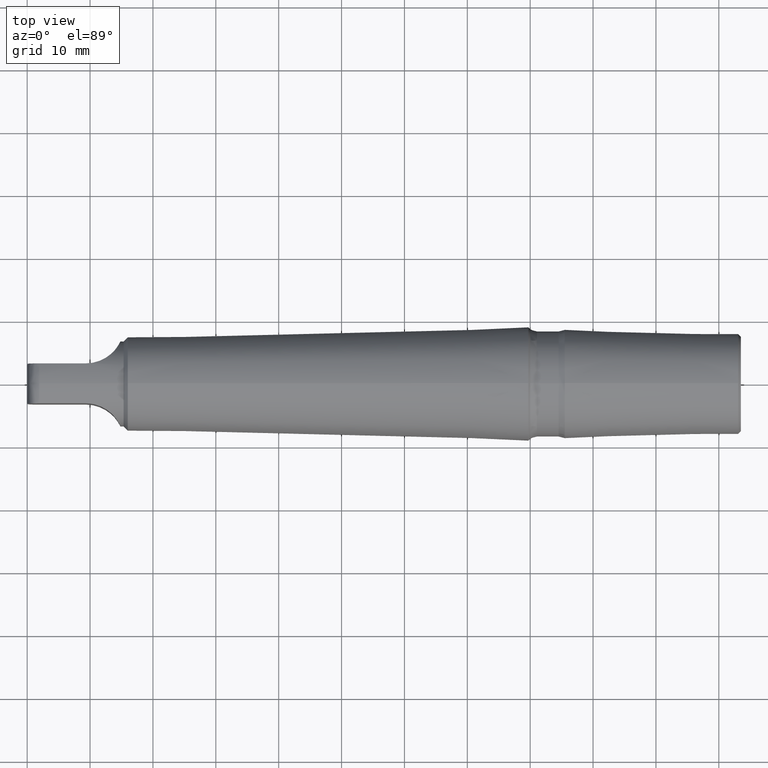
[diagram: clean part render]
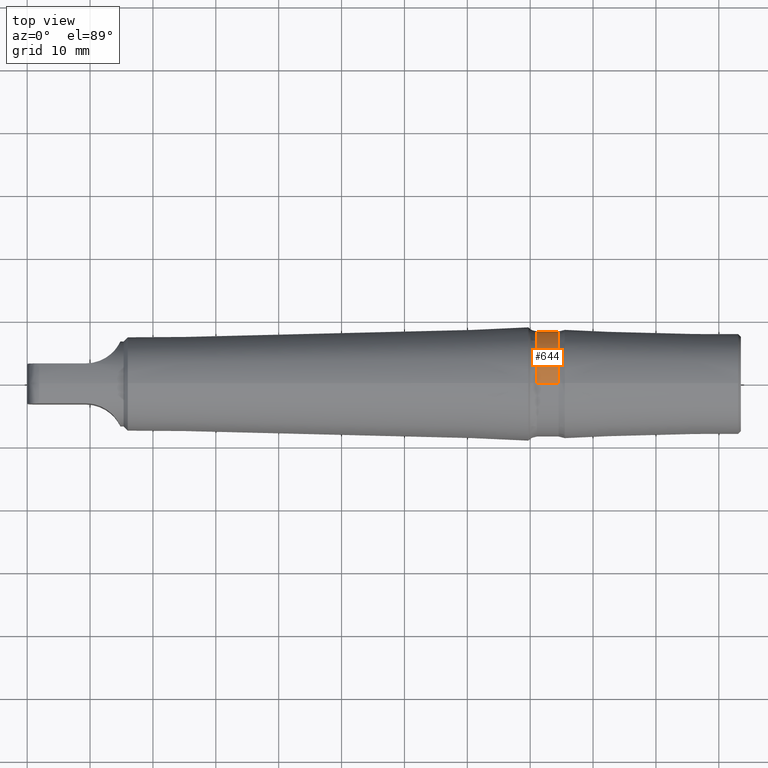
[diagram: same view with one face highlighted and labeled with its STEP entity id]
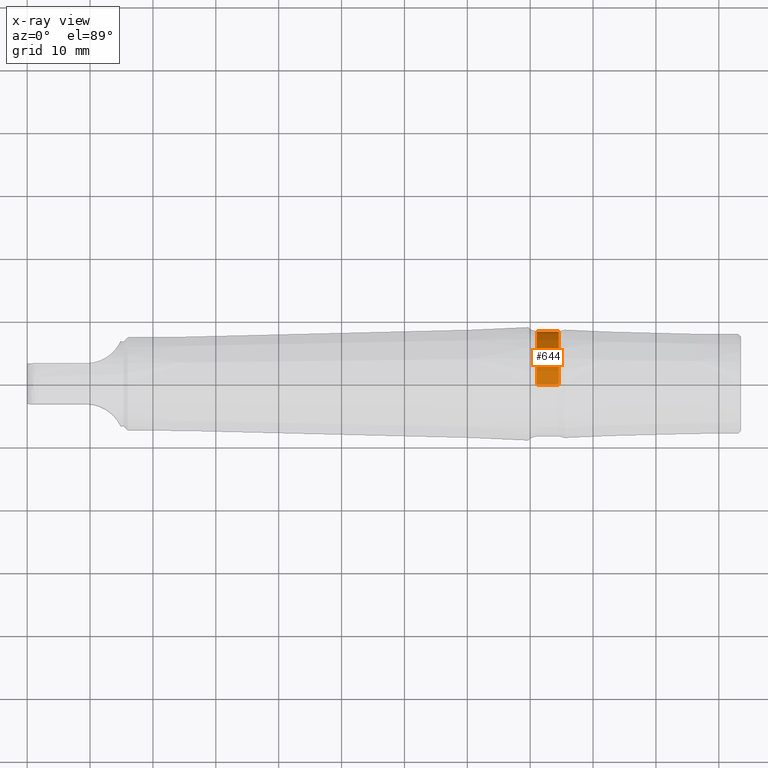
[diagram: x-ray of the same camera — body ghosted, the highlighted face saturated]
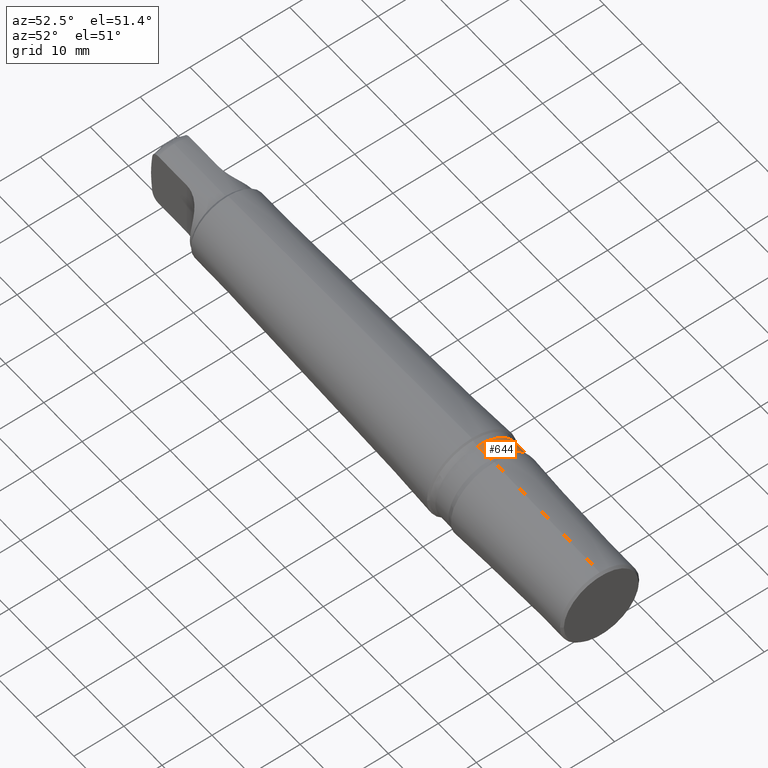
[diagram: same view with one face highlighted and labeled with its STEP entity id]
A machine part, top view. The second image highlights one B-rep face of the part: STEP entity #644.
The next image is the same camera in x-ray: the body ghosted, the highlighted face saturated — about 3% of this face is hidden behind the body in this view.
A second angle (auxiliary view) of the same face is appended — the face is thin or edge-on in the first view.
In plain terms, the highlighted cylindrical surface (partial cylindrical patch) has radius 8.4 mm, axis along (1, 0, 0).
Its self-contained STEP definition (entity closure, byte-faithful):
#35 = CARTESIAN_POINT ( 'NONE',  ( 84.52727993081482800, 0.0000000000000000000, 0.0000000000000000000 ) ) ;
#55 = DIRECTION ( 'NONE',  ( 1.000000000000000000, 0.0000000000000000000, 0.0000000000000000000 ) ) ;
#61 = AXIS2_PLACEMENT_3D ( 'NONE', #35, #1144, #283 ) ;
#81 = CARTESIAN_POINT ( 'NONE',  ( 81.07718225899999700, 0.0000000000000000000, 0.0000000000000000000 ) ) ;
#100 = VERTEX_POINT ( 'NONE', #226 ) ;
#103 = CYLINDRICAL_SURFACE ( 'NONE', #266, 8.400000000000000400 ) ;
#146 = ORIENTED_EDGE ( 'NONE', *, *, #981, .T. ) ;
#177 = VERTEX_POINT ( 'NONE', #316 ) ;
#226 = CARTESIAN_POINT ( 'NONE',  ( 81.07718225836268300, -3.771332394006787800E-010, -8.399999999858293300 ) ) ;
#227 = CIRCLE ( 'NONE', #356, 8.400000000000000400 ) ;
#266 = AXIS2_PLACEMENT_3D ( 'NONE', #827, #792, #324 ) ;
#283 = DIRECTION ( 'NONE',  ( 1.652117596212568500E-015, -1.000000000000000000, 0.0000000000000000000 ) ) ;
#316 = CARTESIAN_POINT ( 'NONE',  ( 84.52727993020370400, -2.584303199293173000E-009, 8.399999999943842600 ) ) ;
#324 = DIRECTION ( 'NONE',  ( 0.0000000000000000000, 0.0000000000000000000, -1.000000000000000000 ) ) ;
#346 = FACE_OUTER_BOUND ( 'NONE', #1176, .T. ) ;
#356 = AXIS2_PLACEMENT_3D ( 'NONE', #81, #641, #1194 ) ;
#365 = DIRECTION ( 'NONE',  ( 1.000000000000000000, 0.0000000000000000000, 0.0000000000000000000 ) ) ;
#367 = ORIENTED_EDGE ( 'NONE', *, *, #1017, .T. ) ;
#376 = VECTOR ( 'NONE', #55, 1000.000000000000000 ) ;
#436 = CIRCLE ( 'NONE', #61, 8.399999999775367600 ) ;
#475 = CARTESIAN_POINT ( 'NONE',  ( 81.07718225899999700, 0.0000000000000000000, -8.400000000000000400 ) ) ;
#523 = EDGE_CURVE ( 'NONE', #927, #100, #227, .T. ) ;
#538 = ORIENTED_EDGE ( 'NONE', *, *, #523, .F. ) ;
#641 = DIRECTION ( 'NONE',  ( -1.000000000000000000, -0.0000000000000000000, -0.0000000000000000000 ) ) ;
#644 = ADVANCED_FACE ( 'NONE', ( #346 ), #103, .T. ) ;
#654 = CARTESIAN_POINT ( 'NONE',  ( 84.52727993020370400, -7.542664788013575500E-010, -8.399999999943842600 ) ) ;
#739 = CARTESIAN_POINT ( 'NONE',  ( 81.07718225836268300, -1.292151599646586500E-009, 8.399999999858293300 ) ) ;
#790 = ORIENTED_EDGE ( 'NONE', *, *, #1068, .F. ) ;
#792 = DIRECTION ( 'NONE',  ( 1.000000000000000000, 0.0000000000000000000, 0.0000000000000000000 ) ) ;
#827 = CARTESIAN_POINT ( 'NONE',  ( 81.07718225899999700, 0.0000000000000000000, 0.0000000000000000000 ) ) ;
#868 = VECTOR ( 'NONE', #365, 1000.000000000000000 ) ;
#927 = VERTEX_POINT ( 'NONE', #739 ) ;
#962 = VERTEX_POINT ( 'NONE', #654 ) ;
#981 = EDGE_CURVE ( 'NONE', #177, #962, #436, .T. ) ;
#1017 = EDGE_CURVE ( 'NONE', #927, #177, #1123, .T. ) ;
#1068 = EDGE_CURVE ( 'NONE', #100, #962, #1095, .T. ) ;
#1095 = LINE ( 'NONE', #475, #376 ) ;
#1123 = LINE ( 'NONE', #1127, #868 ) ;
#1127 = CARTESIAN_POINT ( 'NONE',  ( 81.07718225899999700, 1.028703311283776800E-015, 8.400000000000000400 ) ) ;
#1144 = DIRECTION ( 'NONE',  ( -1.000000000000000000, -2.478176394262309200E-015, 0.0000000000000000000 ) ) ;
#1176 = EDGE_LOOP ( 'NONE', ( #538, #367, #146, #790 ) ) ;
#1194 = DIRECTION ( 'NONE',  ( 0.0000000000000000000, 0.0000000000000000000, -1.000000000000000000 ) ) ;